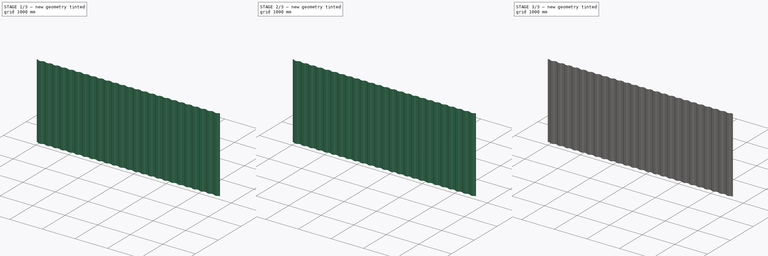
[diagram: build sequence overview — one tinted view per stage of 3, left to right]
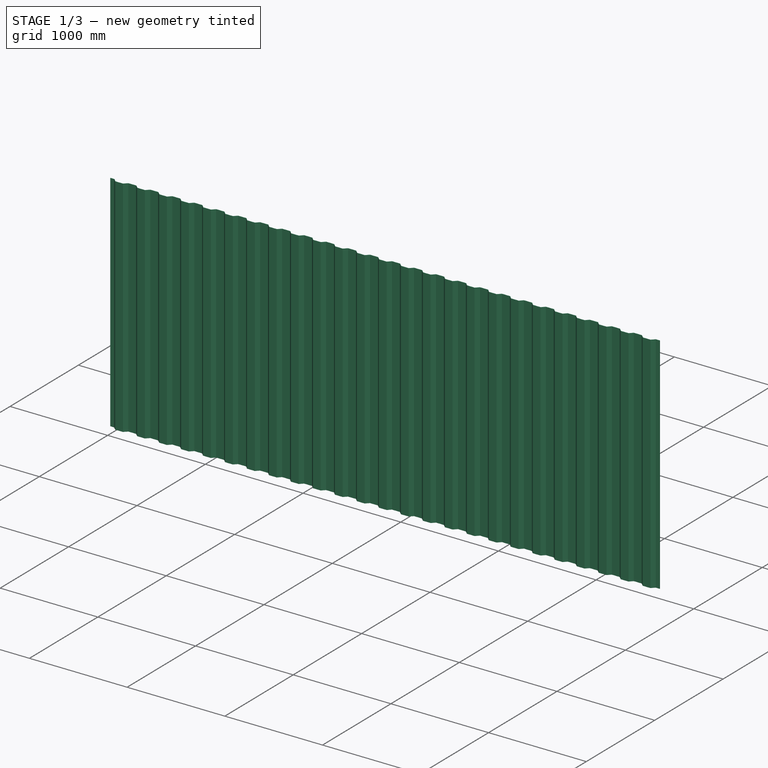
[diagram: stage 1 of 3 — iso view after this stage's code; geometry added in this stage tinted green]
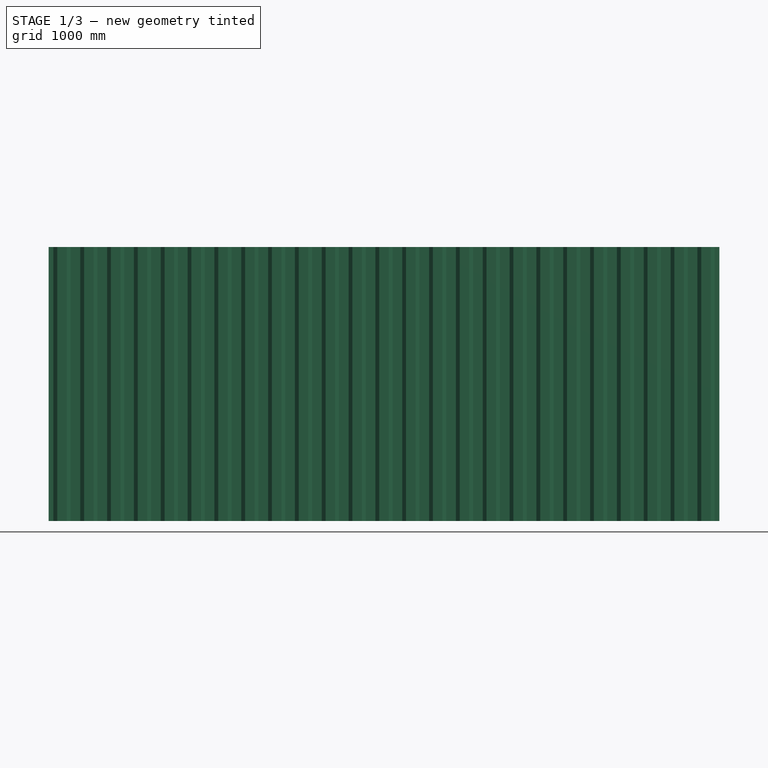
[diagram: stage 1 of 3 — front view after this stage's code; geometry added in this stage tinted green]
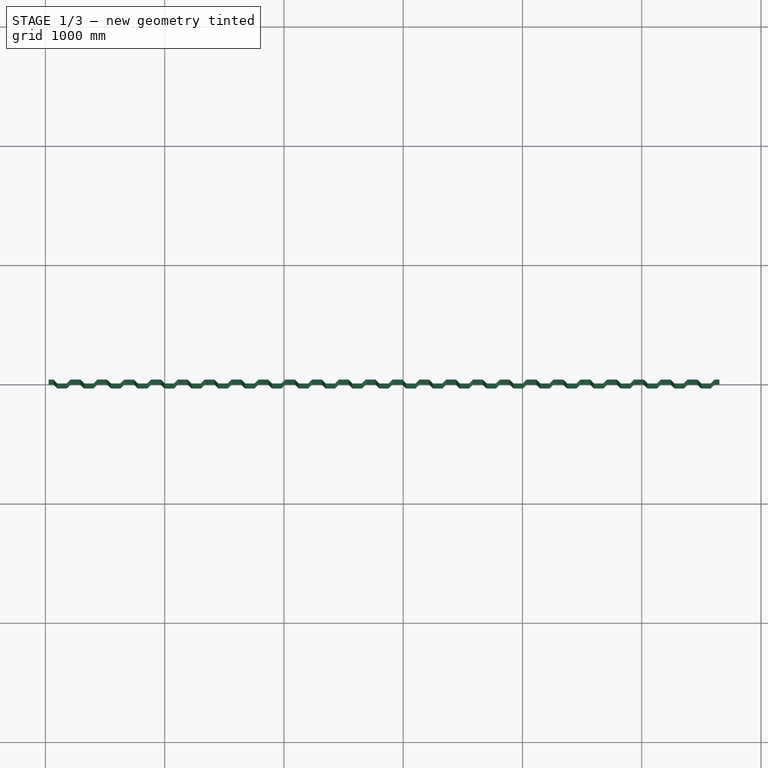
[diagram: stage 1 of 3 — top view after this stage's code; geometry added in this stage tinted green]
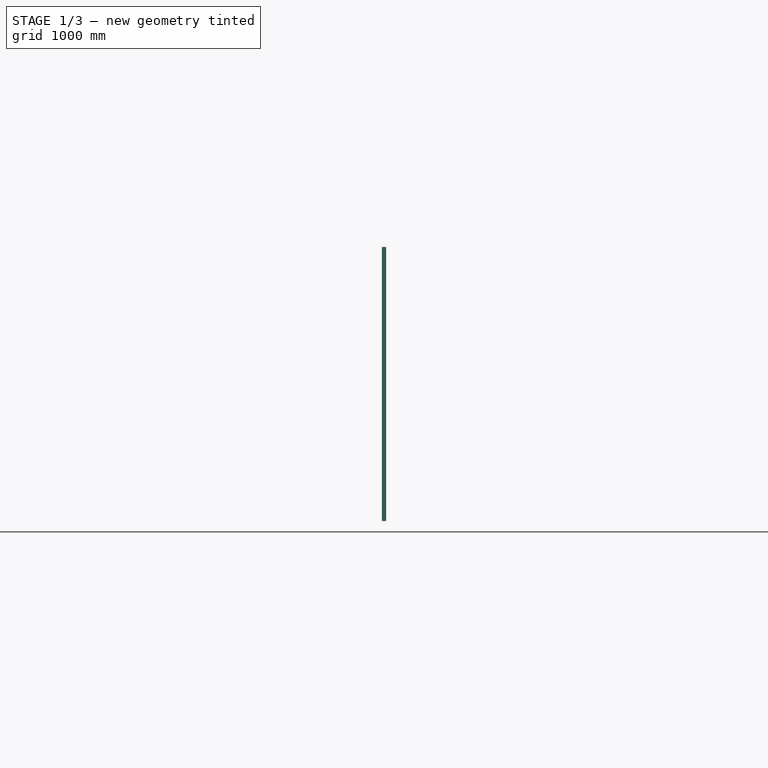
[diagram: stage 1 of 3 — right view after this stage's code; geometry added in this stage tinted green]
FCSTD DOCUMENT  (FreeCAD 0.18R4 (GitTag))
Label: wall_side
License: All rights reserved
LicenseURL: http://en.wikipedia.org/wiki/All_rights_reserved
objects: Sketcher::SketchObject×2, PartDesign::Pad×2, PartDesign::Fillet×2, PartDesign::LinearPattern×1, PartDesign::Body×1
note: 10 computed .brp shape members not serialized (recipe doc carries the construction recipe); baked Part::Feature solids carry a one-line shape summary decoded from their .brp

FEATURE [Sketcher::SketchObject] Sketch
  MapMode = 5
  Support = -> [XY_Plane]
  sketch-geometry (12):
    g0: LineSegment StartX=26.5 StartY=0 StartZ=0 EndX=67 EndY=0 EndZ=0
    g1: LineSegment StartX=67 StartY=0 StartZ=0 EndX=99 EndY=-32 EndZ=0
    g2: LineSegment StartX=99 StartY=-32 StartZ=0 EndX=179 EndY=-32 EndZ=0
    g3: LineSegment StartX=179 StartY=-32 StartZ=0 EndX=211 EndY=0 EndZ=0
    g4: LineSegment StartX=211 StartY=0 StartZ=0 EndX=251.5 EndY=0 EndZ=0
    g5: LineSegment StartX=26.5 StartY=3 StartZ=0 EndX=68.2426 EndY=3 EndZ=0
    g6: LineSegment StartX=68.2426 StartY=3 StartZ=0 EndX=100.243 EndY=-29 EndZ=0
    g7: LineSegment StartX=100.243 StartY=-29 StartZ=0 EndX=177.757 EndY=-29 EndZ=0
    g8: LineSegment StartX=177.757 StartY=-29 StartZ=0 EndX=209.757 EndY=3 EndZ=0
    g9: LineSegment StartX=209.757 StartY=3 StartZ=0 EndX=251.5 EndY=3 EndZ=0
    g10: LineSegment StartX=251.5 StartY=0 StartZ=0 EndX=251.5 EndY=3 EndZ=0
    g11: LineSegment StartX=26.5 StartY=0 StartZ=0 EndX=26.5 EndY=3 EndZ=0
  constraints (36):
    c: Horizontal(g0)
    c: Coincident(g1,g0)
    c: Coincident(g2,g1)
    c: Horizontal(g2)
    c: Coincident(g3,g2)
    c: PointOnObject(g3,g-1)
    c: Coincident(g4,g3)
    c: Horizontal(g4)
    c: Angle(g0,g1) = 2.35619
    c: Angle(g3,g4) = 2.35619
    c: DistanceX(g4,g4) = 40.5
    c: DistanceX(g2,g2) = 80
    c: DistanceY(g2,g4) = 32
    c: DistanceX(g0,g0) = 40.5
    c: PointOnObject(g0,g-1)
    c: DistanceX(g-1,g0) = 67
    c: Horizontal(g5)
    c: Coincident(g6,g5)
    c: Coincident(g7,g6)
    c: Horizontal(g7)
    c: Coincident(g8,g7)
    c: Coincident(g9,g8)
    c: Horizontal(g9)
    c: Coincident(g10,g4)
    c: Vertical(g10)
    c: Coincident(g9,g10)
    c: Coincident(g11,g0)
    c: Vertical(g11)
    c: Coincident(g5,g11)
    c: DistanceY(g10,g10) = 3
    c: Parallel(g8,g3)
    c: Parallel(g6,g1)
    c: Distance(g5,g1) = 3
    c: Distance(g3,g8) = 3
    c: Distance(g6,g2) = 3
    c: Equal(g11,g10)
FEATURE [PartDesign::Pad] Pad
  Length = 2297
  Length2 = 100
  Profile = -> Sketch
  Refine = true
  Type = 0
FEATURE [PartDesign::LinearPattern] LinearPattern
  BaseFeature = -> Pad
  Direction = -> X_Axis
  Length = 5400
  Occurrences = 25
  Originals = -> [Pad]
  Refine = true
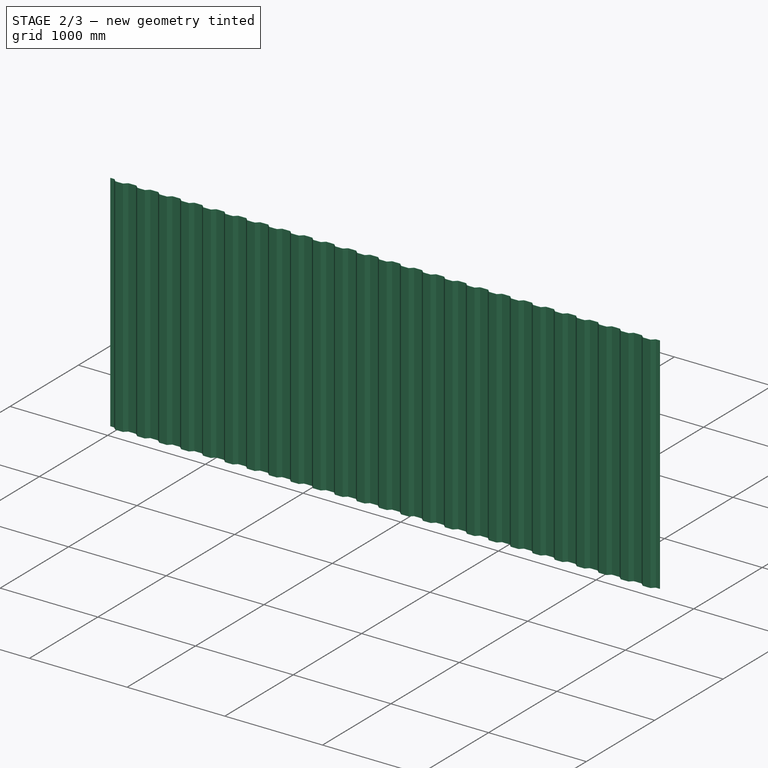
[diagram: stage 2 of 3 — iso view after this stage's code; geometry added in this stage tinted green]
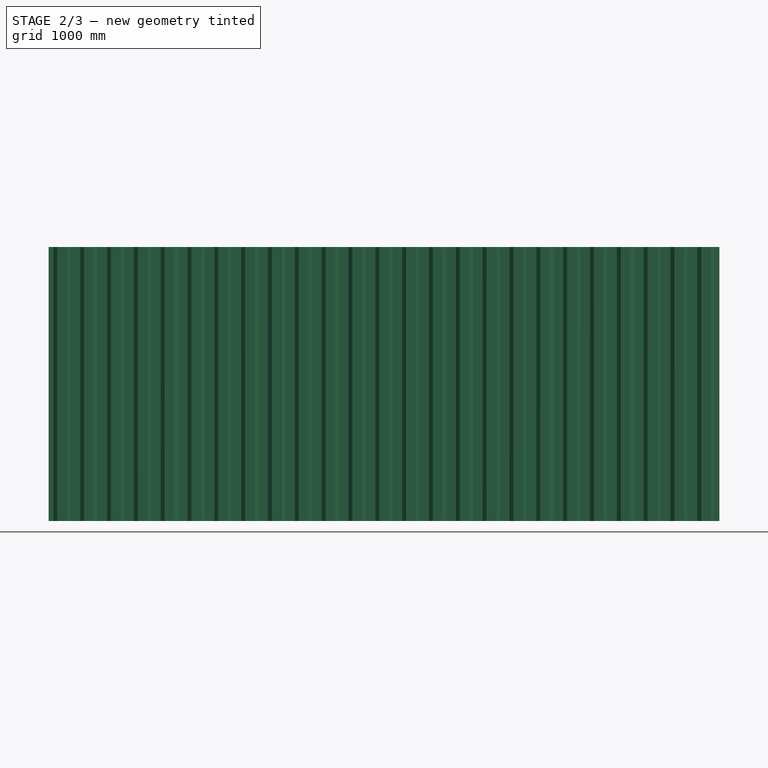
[diagram: stage 2 of 3 — front view after this stage's code; geometry added in this stage tinted green]
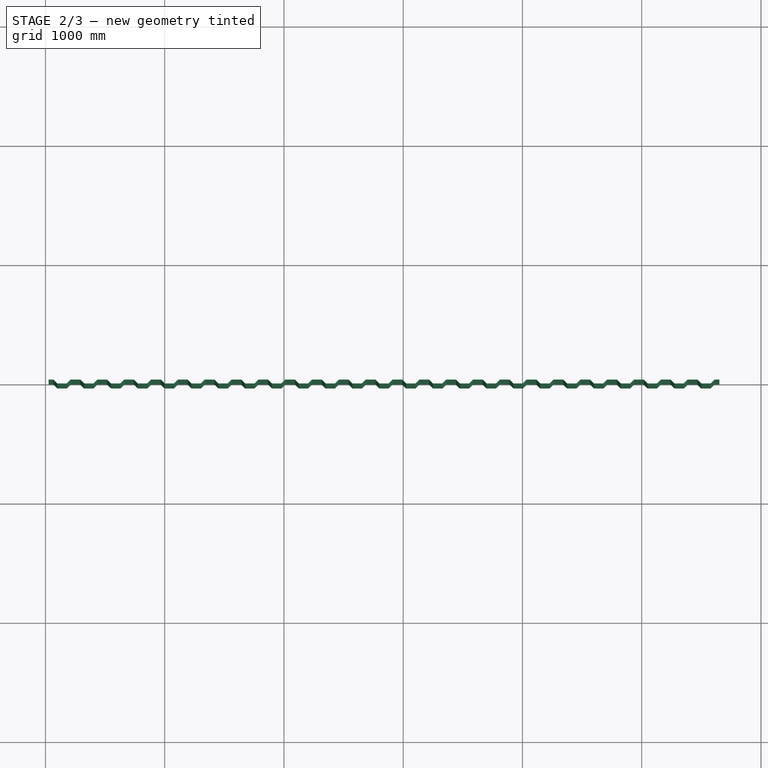
[diagram: stage 2 of 3 — top view after this stage's code; geometry added in this stage tinted green]
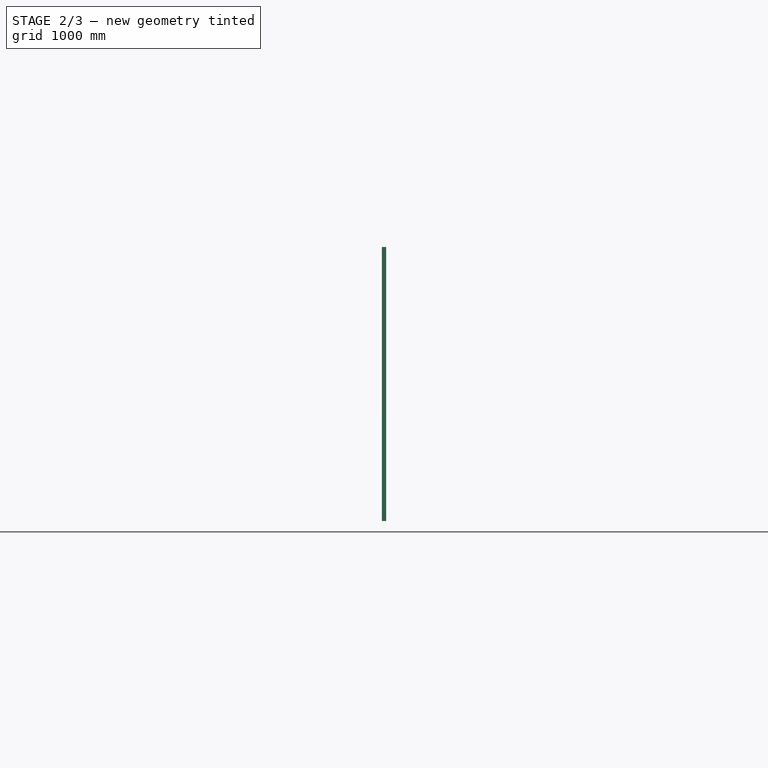
[diagram: stage 2 of 3 — right view after this stage's code; geometry added in this stage tinted green]
FEATURE [PartDesign::Fillet] Fillet
  Base = -> LinearPattern [Edge2,Edge17,Edge30,Edge38,Edge42,Edge50,Edge54,Edge62,Edge66,Edge74,Edge78,Edge86,Edge90,Edge98,Edge102,Edge110,Edge114,Edge122,Edge126,Edge134,Edge146,Edge138,Edge150,Edge158,Edge170,Edge162,Edge174,Edge182,Edge186,Edge194,Edge198,Edge206,Edge210,Edge218,Edge222,Edge230,Edge234,Edge242,Edge246,Edge254,+60 more]
  BaseFeature = -> LinearPattern
  Radius = 3
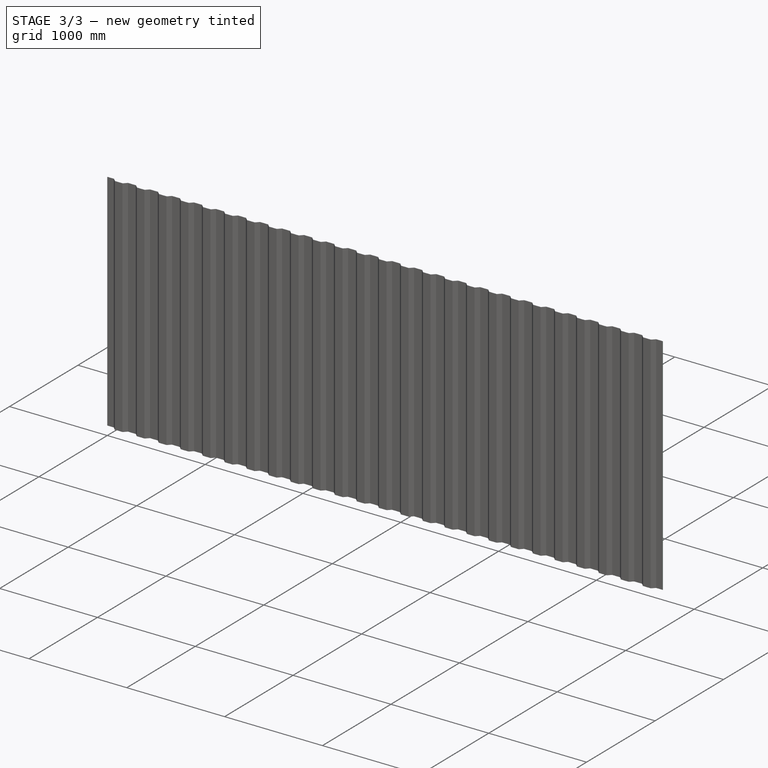
[diagram: stage 3 of 3 — iso view after this stage's code; geometry added in this stage tinted green]
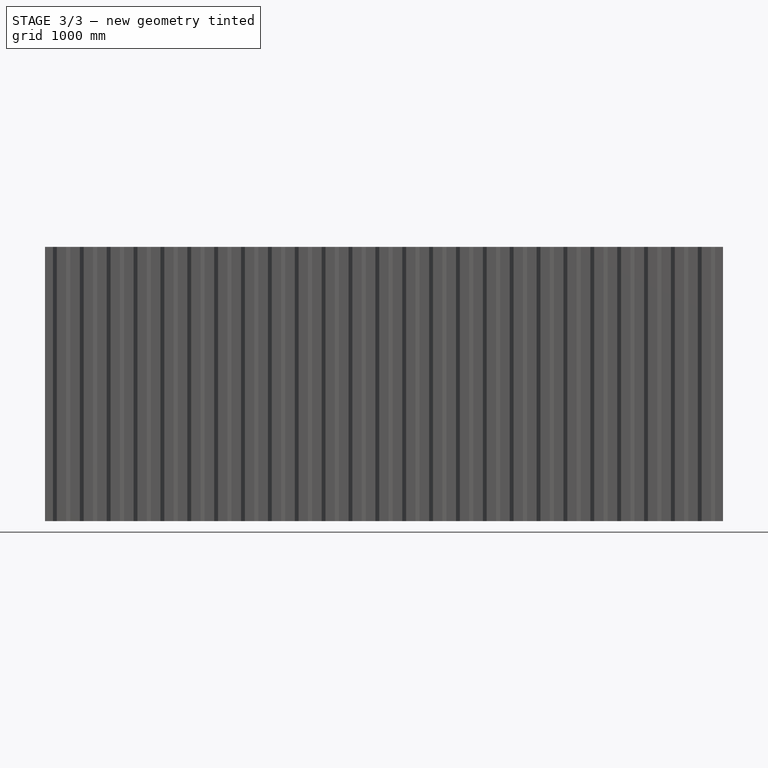
[diagram: stage 3 of 3 — front view after this stage's code; geometry added in this stage tinted green]
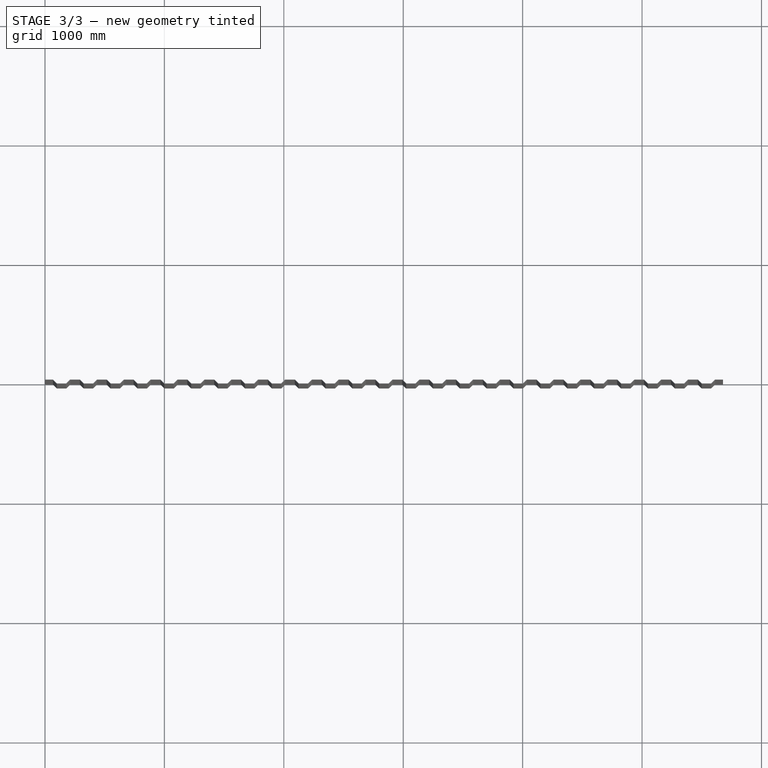
[diagram: stage 3 of 3 — top view after this stage's code; geometry added in this stage tinted green]
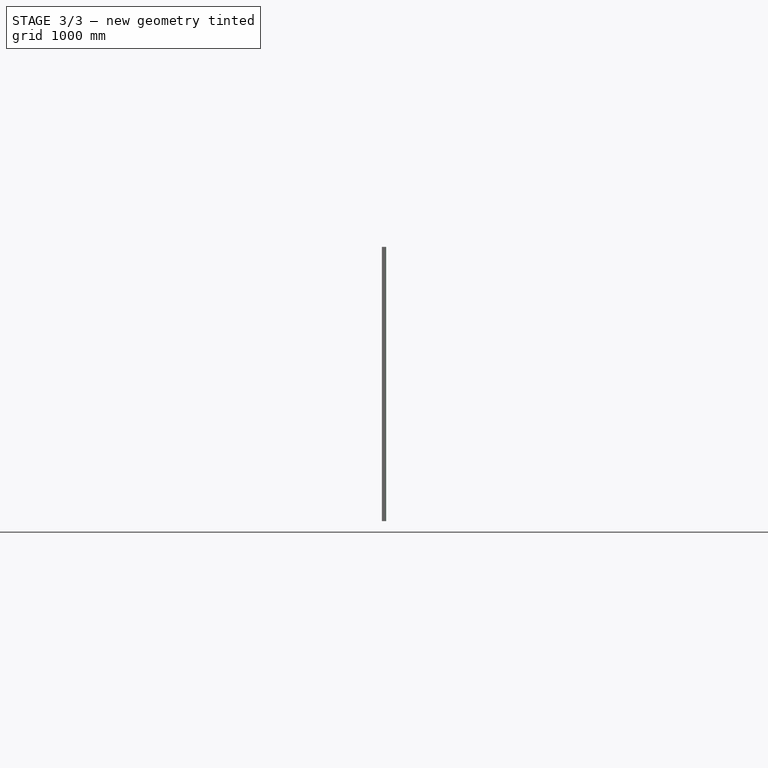
[diagram: stage 3 of 3 — right view after this stage's code; geometry added in this stage tinted green]
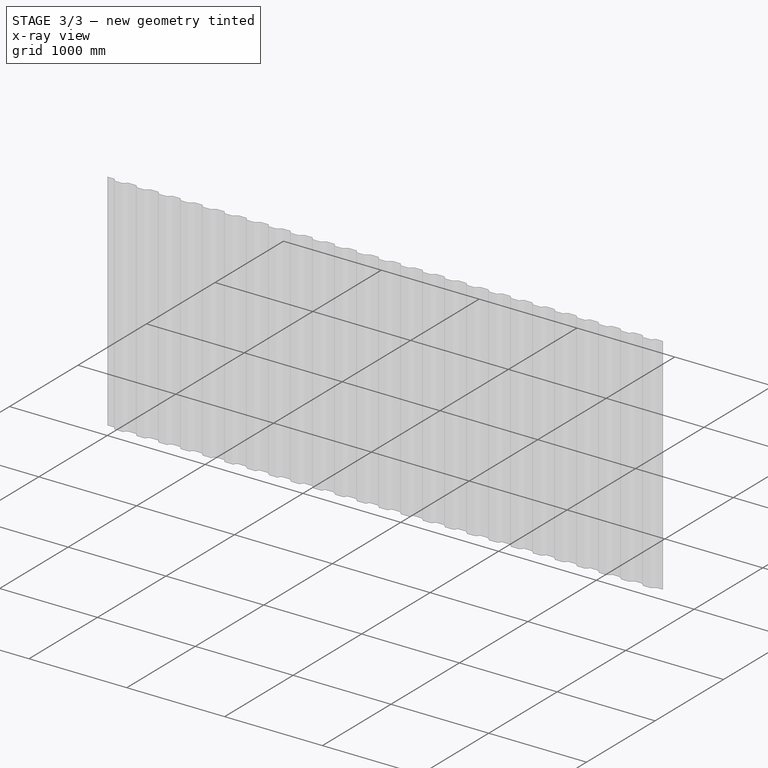
[diagram: stage 3 of 3 — x-ray composite at the iso view; earlier geometry ghosted, this stage's added geometry solid]
FEATURE [PartDesign::Fillet] Fillet001
  Base = -> Fillet [Edge624,Edge614,Edge626,Edge636,Edge638,Edge648,Edge650,Edge660,Edge662,Edge672,Edge674,Edge684,Edge686,Edge696,Edge698,Edge708,Edge710,Edge720,Edge722,Edge732,Edge734,Edge744,Edge746,Edge756,Edge758,Edge768,Edge770,Edge780,Edge782,Edge792,Edge794,Edge804,Edge806,Edge816,Edge818,Edge828,Edge830,Edge840,Edge842,Edge852,+60 more]
  BaseFeature = -> Fillet
  Radius = 6
FEATURE [Sketcher::SketchObject] Sketch001
  ExternalGeometry = -> [Fillet001]
  MapMode = 5
  Placement = pos=(0,0,2297) rot=(0,0,1;0rad)
  Support = -> [Fillet001]
  sketch-geometry (8):
    g0: LineSegment StartX=26.5 StartY=0 StartZ=0 EndX=0 EndY=0 EndZ=0
    g1: LineSegment StartX=0 StartY=0 StartZ=0 EndX=0 EndY=3 EndZ=0
    g2: LineSegment StartX=0 StartY=3 StartZ=0 EndX=26.5 EndY=3 EndZ=0
    g3: LineSegment StartX=26.5 StartY=3 StartZ=0 EndX=26.5 EndY=0 EndZ=0
    g4: LineSegment StartX=5651.5 StartY=3 StartZ=0 EndX=5678 EndY=3 EndZ=0
    g5: LineSegment StartX=5678 StartY=3 StartZ=0 EndX=5678 EndY=0 EndZ=0
    g6: LineSegment StartX=5678 StartY=0 StartZ=0 EndX=5651.5 EndY=0 EndZ=0
    g7: LineSegment StartX=5651.5 StartY=0 StartZ=0 EndX=5651.5 EndY=3 EndZ=0
  constraints (20):
    c: Coincident(g0,g1)
    c: Coincident(g1,g2)
    c: Coincident(g2,g3)
    c: Coincident(g3,g0)
    c: Horizontal(g2)
    c: Vertical(g1)
    c: Coincident(g0,g-3)
    c: Coincident(g2,g-3)
    c: Coincident(g0,g-1)
    c: Coincident(g4,g5)
    c: Coincident(g5,g6)
    c: Coincident(g6,g7)
    c: Coincident(g7,g4)
    c: Horizontal(g4)
    c: Horizontal(g6)
    c: Vertical(g5)
    c: Vertical(g7)
    c: Coincident(g4,g-4)
    c: PointOnObject(g6,g-1)
    c: DistanceX(g4,g4) = 26.5
FEATURE [PartDesign::Pad] Pad001
  BaseFeature = -> Fillet001
  Length = 2297
  Length2 = 100
  Profile = -> Sketch001
  Refine = true
  Reversed = true
  Type = 0
FEATURE [PartDesign::Body] Body
  Group = -> [Sketch,Pad,LinearPattern,Fillet,Fillet001,Sketch001,Pad001]
  Origin = -> Origin
  Tip = -> Pad001
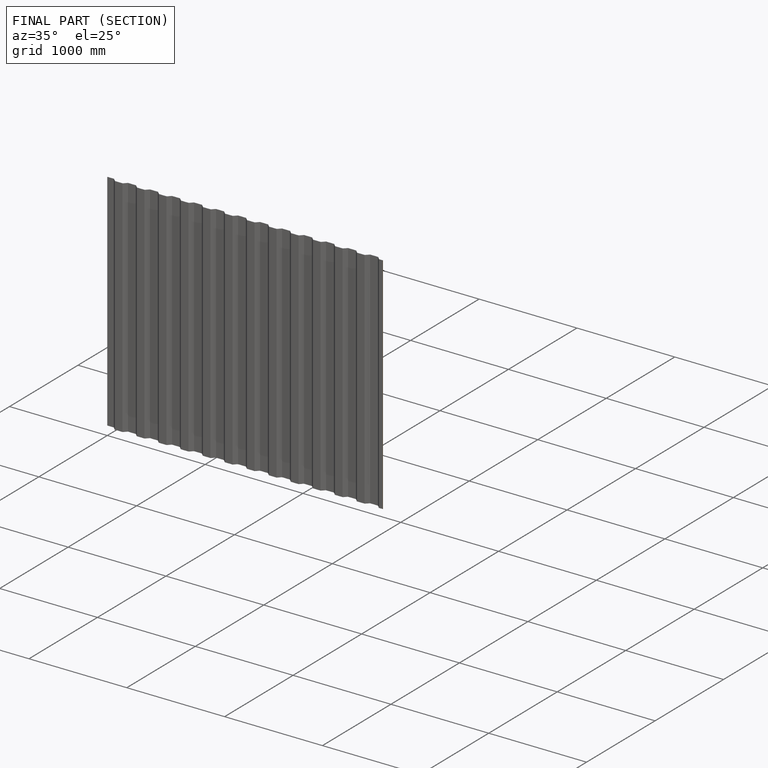
[diagram: finished part — half-section view (interior)]
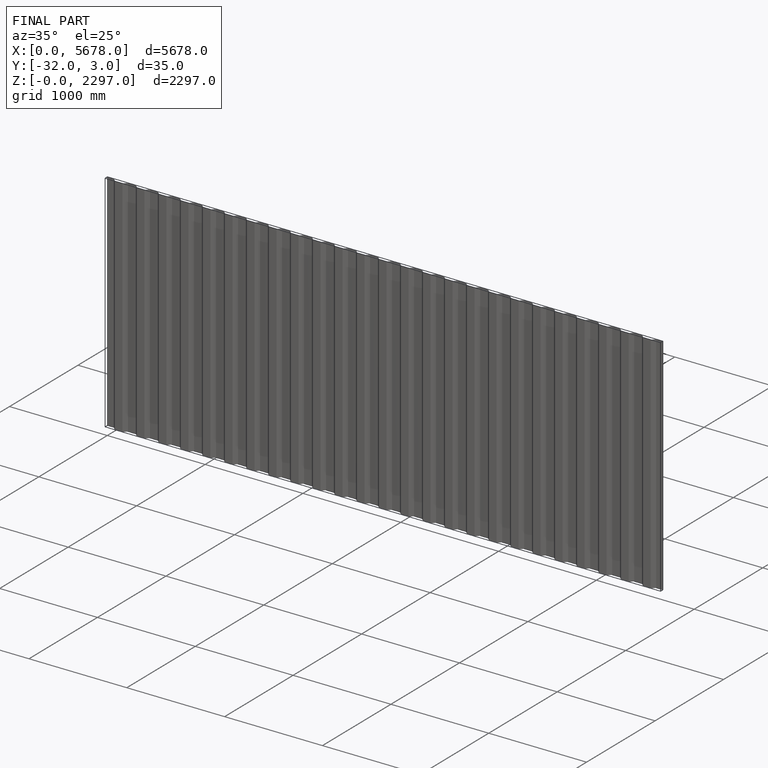
[diagram: finished part — iso view with bounding-box wireframe]
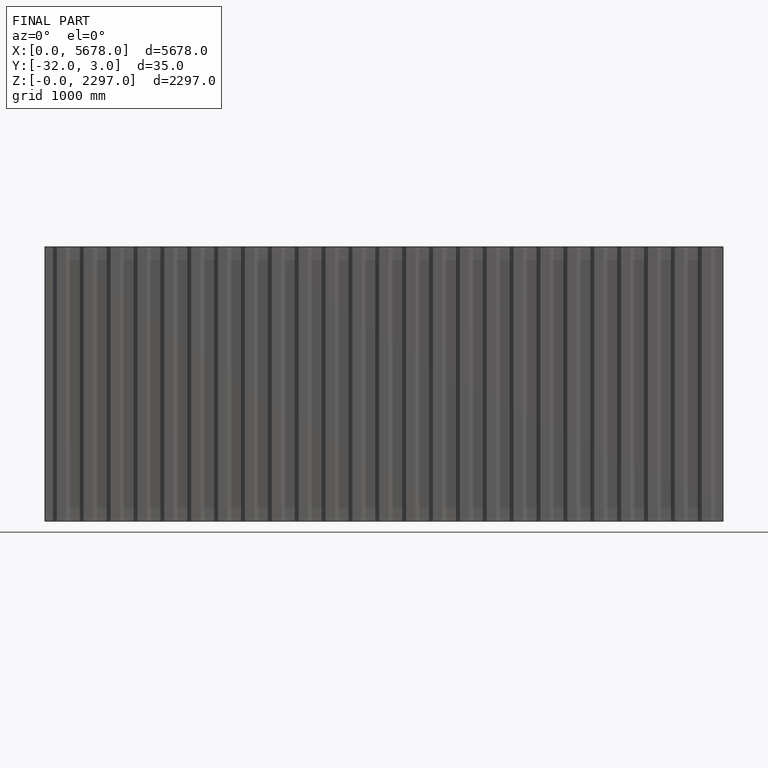
[diagram: finished part — front view with bounding-box wireframe]
